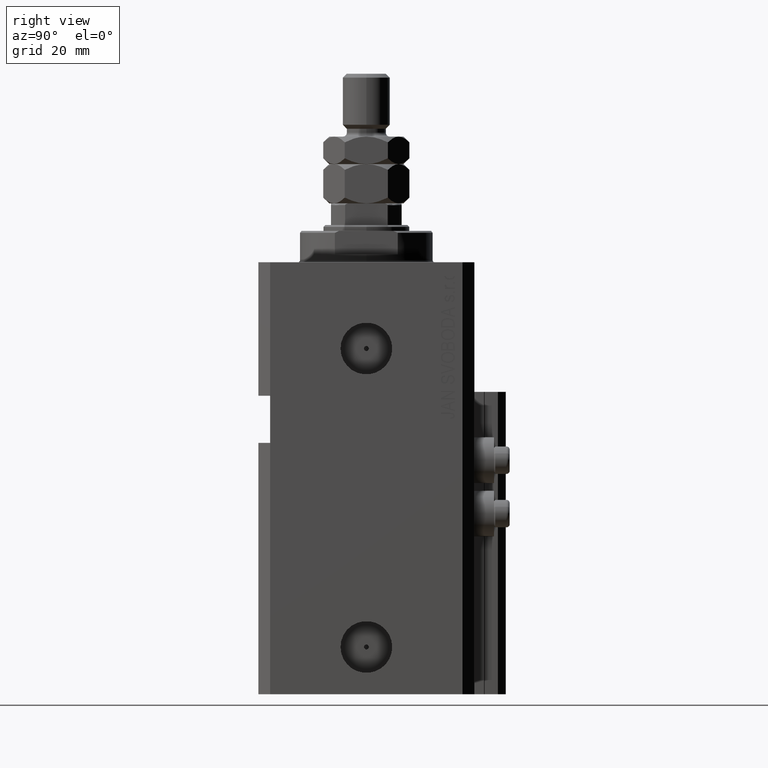
[diagram: clean part render]
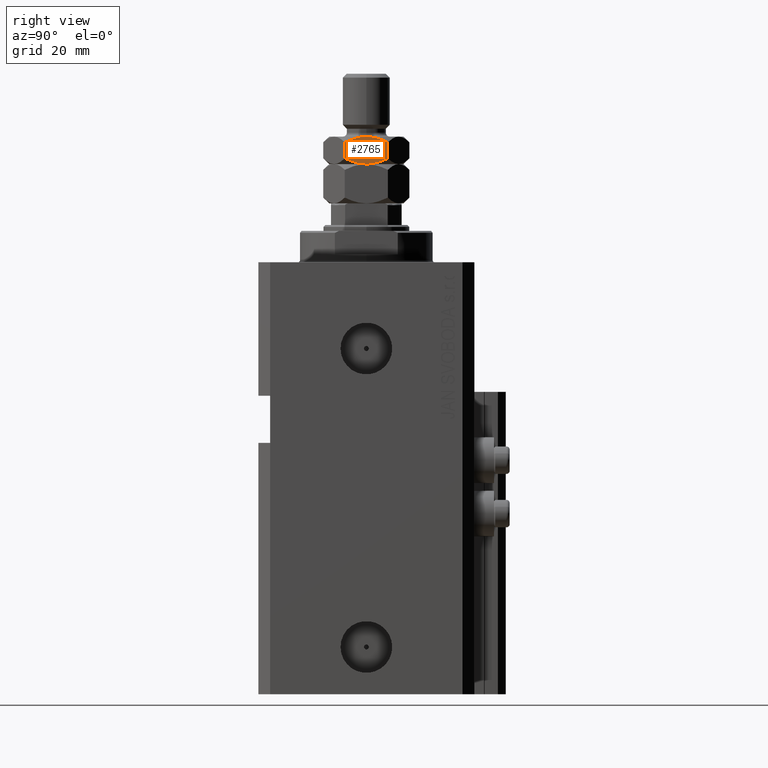
[diagram: same view with one face highlighted and labeled with its STEP entity id]
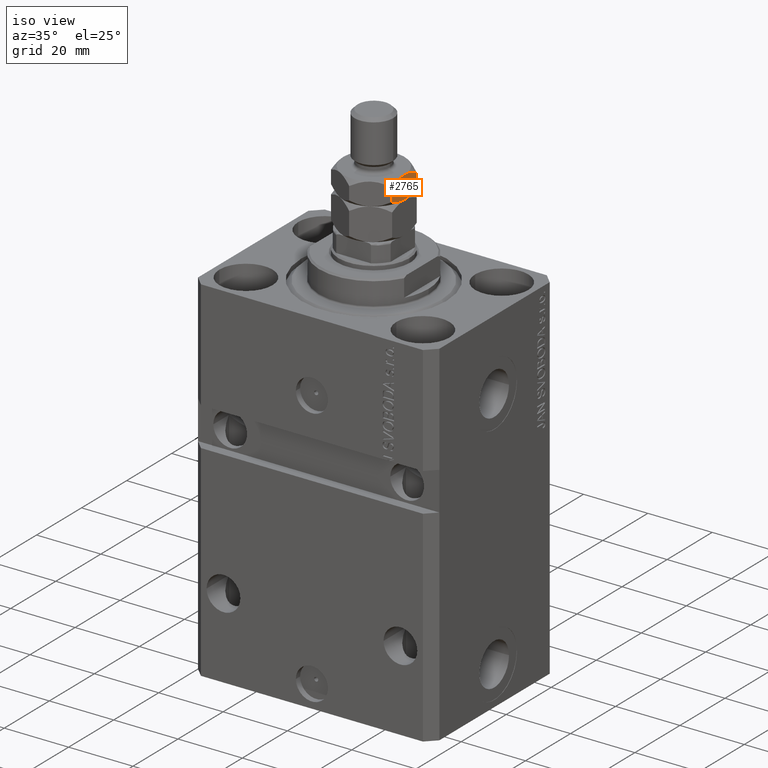
[diagram: same view with one face highlighted and labeled with its STEP entity id]
A machine part, right view. The second image highlights one B-rep face of the part: STEP entity #2765.
A second angle (iso view) of the same face is appended — the face is thin or edge-on in the first view.
In plain terms, the highlighted planar face has unit normal (-1, -0, 0).
Its self-contained STEP definition (entity closure, byte-faithful):
#197 = CARTESIAN_POINT ( 'NONE',  ( 9.499999999999992895, 1.905622789724485067, 10.17795958574150283 ) ) ;
#1487 = CARTESIAN_POINT ( 'NONE',  ( 9.499999999999991118, -3.733428111434933250, 16.30082488061093215 ) ) ;
#1722 = CARTESIAN_POINT ( 'NONE',  ( 9.499999999999994671, -5.484827557301442447, 15.53034488539711688 ) ) ;
#2223 = CARTESIAN_POINT ( 'NONE',  ( 9.499999999999996447, -2.369688663400942197, 16.71871151796999300 ) ) ;
#2765 = ADVANCED_FACE ( 'NONE', ( #17644 ), #32926, .F. ) ;
#3072 = CARTESIAN_POINT ( 'NONE',  ( 9.499999999999996447, 0.000000000000000000, 10.00000000000000000 ) ) ;
#3372 = DIRECTION ( 'NONE',  ( 1.581383788144378447E-16, -1.000000000000000000, 0.000000000000000000 ) ) ;
#3470 = CARTESIAN_POINT ( 'NONE',  ( 9.499999999999991118, 3.733428111434938135, 10.69917511938905896 ) ) ;
#3800 = CARTESIAN_POINT ( 'NONE',  ( 9.499999999999994671, -3.739300393387253951, 10.70136854772636070 ) ) ;
#4550 = DIRECTION ( 'NONE',  ( -0.000000000000000000, -0.000000000000000000, -1.000000000000000000 ) ) ;
#4651 = CARTESIAN_POINT ( 'NONE',  ( 9.499999999999994671, 1.502314598737158637E-15, 17.00000000000000000 ) ) ;
#5641 = EDGE_CURVE ( 'NONE', #47740, #10463, #17098, .T. ) ;
#5703 = EDGE_CURVE ( 'NONE', #29970, #25646, #27418, .T. ) ;
#7223 = CARTESIAN_POINT ( 'NONE',  ( 9.499999999999994671, 3.283585621344905725, 10.54191787159927607 ) ) ;
#7953 = ORIENTED_EDGE ( 'NONE', *, *, #5703, .F. ) ;
#9487 = CARTESIAN_POINT ( 'NONE',  ( 9.499999999999994671, -5.484827557301442447, 15.53034488539711688 ) ) ;
#10319 = CARTESIAN_POINT ( 'NONE',  ( 9.499999999999994671, -5.484827557301443335, 11.46965511460288312 ) ) ;
#10463 = VERTEX_POINT ( 'NONE', #42614 ) ;
#11053 = CARTESIAN_POINT ( 'NONE',  ( 9.499999999999991118, -1.895392204582992068, 10.14648436506573681 ) ) ;
#11458 = CARTESIAN_POINT ( 'NONE',  ( 9.499999999999991118, 0.4761117316842319869, 9.999999999999992895 ) ) ;
#11785 = ORIENTED_EDGE ( 'NONE', *, *, #5641, .F. ) ;
#12085 = ORIENTED_EDGE ( 'NONE', *, *, #19823, .T. ) ;
#14961 = CARTESIAN_POINT ( 'NONE',  ( 9.499999999999994671, 0.9601762266066407037, 10.03695139510887380 ) ) ;
#15002 = AXIS2_PLACEMENT_3D ( 'NONE', #29169, #44405, #3372 ) ;
#15455 = CARTESIAN_POINT ( 'NONE',  ( 9.499999999999996447, 0.000000000000000000, 10.00000000000000000 ) ) ;
#15839 = ORIENTED_EDGE ( 'NONE', *, *, #26876, .F. ) ;
#16205 = B_SPLINE_CURVE_WITH_KNOTS ( 'NONE', 3,
 ( #9487, #24774, #36510, #1487, #16754, #2223, #47014, #17488, #48008, #31792 ),
 .UNSPECIFIED., .F., .F.,
 ( 4, 2, 2, 2, 4 ),
 ( 0.01567844649877152621, 0.01710651001824320394, 0.01853457353771487820, 0.01996263705718655593, 0.02139070057665823366 ),
 .UNSPECIFIED. ) ;
#16737 = B_SPLINE_CURVE_WITH_KNOTS ( 'NONE', 3,
 ( #47107, #36112, #39843, #21346, #39600, #36356, #16846, #32132 ),
 .UNSPECIFIED., .F., .F.,
 ( 4, 2, 2, 4 ),
 ( 0.02139070057665823366, 0.02425837263787777170, 0.02569220866848754420, 0.02712604469909731322 ),
 .UNSPECIFIED. ) ;
#16754 = CARTESIAN_POINT ( 'NONE',  ( 9.499999999999992895, -3.283585621344904393, 16.45808212840072215 ) ) ;
#16846 = CARTESIAN_POINT ( 'NONE',  ( 9.499999999999989342, 5.058804922144356730, 15.74335620297565441 ) ) ;
#17098 = LINE ( 'NONE', #47610, #23128 ) ;
#17170 = VERTEX_POINT ( 'NONE', #4651 ) ;
#17488 = CARTESIAN_POINT ( 'NONE',  ( 9.499999999999992895, -0.9601762266066392604, 16.96304860489112087 ) ) ;
#17644 = FACE_OUTER_BOUND ( 'NONE', #28992, .T. ) ;
#18325 = ORIENTED_EDGE ( 'NONE', *, *, #48884, .F. ) ;
#18814 = CARTESIAN_POINT ( 'NONE',  ( 9.499999999999996447, -4.625461644961930574, 11.05843019788303749 ) ) ;
#19823 = EDGE_CURVE ( 'NONE', #32125, #25646, #45587, .T. ) ;
#21346 = CARTESIAN_POINT ( 'NONE',  ( 9.499999999999992895, 3.284280073076856876, 16.45811109165832065 ) ) ;
#22337 = CARTESIAN_POINT ( 'NONE',  ( 9.499999999999994671, -5.058804922144361171, 11.25664379702434204 ) ) ;
#22828 = CARTESIAN_POINT ( 'NONE',  ( 9.499999999999998224, -3.284280073076859985, 10.54188890834167758 ) ) ;
#22978 = CARTESIAN_POINT ( 'NONE',  ( 9.499999999999992895, 4.621752210278245343, 11.05676471017157958 ) ) ;
#23128 = VECTOR ( 'NONE', #35872, 1000.000000000000000 ) ;
#24774 = CARTESIAN_POINT ( 'NONE',  ( 9.499999999999996447, -5.058637179188067101, 15.74344007445382232 ) ) ;
#25492 = VECTOR ( 'NONE', #4550, 1000.000000000000000 ) ;
#25646 = VERTEX_POINT ( 'NONE', #31542 ) ;
#26106 = B_SPLINE_CURVE_WITH_KNOTS ( 'NONE', 3,
 ( #34244, #45727, #22978, #3470, #7223, #26243, #197, #14961, #11458, #15455 ),
 .UNSPECIFIED., .F., .F.,
 ( 4, 2, 2, 2, 4 ),
 ( 0.01567844649877152968, 0.01710651001824320741, 0.01853457353771488514, 0.01996263705718656287, 0.02139070057665824059 ),
 .UNSPECIFIED. ) ;
#26243 = CARTESIAN_POINT ( 'NONE',  ( 9.499999999999994671, 2.369688663400943085, 10.28128848203000878 ) ) ;
#26876 = EDGE_CURVE ( 'NONE', #10463, #29970, #26106, .T. ) ;
#27418 = B_SPLINE_CURVE_WITH_KNOTS ( 'NONE', 3,
 ( #38075, #45077, #11053, #22828, #3800, #18814, #22337, #10319 ),
 .UNSPECIFIED., .F., .F.,
 ( 4, 2, 2, 4 ),
 ( 0.02139070057665824059, 0.02425837263787778211, 0.02569220866848755114, 0.02712604469909732363 ),
 .UNSPECIFIED. ) ;
#28992 = EDGE_LOOP ( 'NONE', ( #15839, #11785, #18325, #34088, #12085, #7953 ) ) ;
#29169 = CARTESIAN_POINT ( 'NONE',  ( 9.499999999999994671, -5.484827557301443335, 17.00000000000000000 ) ) ;
#29970 = VERTEX_POINT ( 'NONE', #3072 ) ;
#31081 = CARTESIAN_POINT ( 'NONE',  ( 9.499999999999994671, -5.484827557301443335, 17.00000000000000000 ) ) ;
#31542 = CARTESIAN_POINT ( 'NONE',  ( 9.499999999999994671, -5.484827557301443335, 11.46965511460288312 ) ) ;
#31792 = CARTESIAN_POINT ( 'NONE',  ( 9.499999999999994671, 1.502314598737158637E-15, 17.00000000000000000 ) ) ;
#32028 = EDGE_CURVE ( 'NONE', #32125, #17170, #16205, .T. ) ;
#32125 = VERTEX_POINT ( 'NONE', #1722 ) ;
#32132 = CARTESIAN_POINT ( 'NONE',  ( 9.499999999999992895, 5.484827557301444223, 15.53034488539711866 ) ) ;
#32926 = PLANE ( 'NONE',  #15002 ) ;
#33153 = CARTESIAN_POINT ( 'NONE',  ( 9.499999999999992895, 5.484827557301444223, 15.53034488539711866 ) ) ;
#34088 = ORIENTED_EDGE ( 'NONE', *, *, #32028, .F. ) ;
#34244 = CARTESIAN_POINT ( 'NONE',  ( 9.499999999999992895, 5.484827557301444223, 11.46965511460288134 ) ) ;
#35872 = DIRECTION ( 'NONE',  ( -0.000000000000000000, -0.000000000000000000, -1.000000000000000000 ) ) ;
#36112 = CARTESIAN_POINT ( 'NONE',  ( 9.499999999999998224, 0.9560725362376377712, 17.00000000000000000 ) ) ;
#36356 = CARTESIAN_POINT ( 'NONE',  ( 9.499999999999994671, 4.625461644961926133, 15.94156980211696251 ) ) ;
#36510 = CARTESIAN_POINT ( 'NONE',  ( 9.499999999999992895, -4.621752210278242678, 15.94323528982841864 ) ) ;
#38075 = CARTESIAN_POINT ( 'NONE',  ( 9.499999999999996447, 0.000000000000000000, 10.00000000000000000 ) ) ;
#39600 = CARTESIAN_POINT ( 'NONE',  ( 9.499999999999992895, 3.739300393387251731, 16.29863145227364640 ) ) ;
#39843 = CARTESIAN_POINT ( 'NONE',  ( 9.499999999999994671, 1.895392204582990958, 16.85351563493426141 ) ) ;
#42614 = CARTESIAN_POINT ( 'NONE',  ( 9.499999999999992895, 5.484827557301444223, 11.46965511460288134 ) ) ;
#44405 = DIRECTION ( 'NONE',  ( -1.000000000000000000, -1.581383788144378447E-16, 0.000000000000000000 ) ) ;
#45077 = CARTESIAN_POINT ( 'NONE',  ( 9.499999999999996447, -0.9560725362376376602, 9.999999999999994671 ) ) ;
#45587 = LINE ( 'NONE', #31081, #25492 ) ;
#45727 = CARTESIAN_POINT ( 'NONE',  ( 9.499999999999992895, 5.058637179188067101, 11.25655992554617946 ) ) ;
#47014 = CARTESIAN_POINT ( 'NONE',  ( 9.499999999999994671, -1.905622789724483956, 16.82204041425849539 ) ) ;
#47107 = CARTESIAN_POINT ( 'NONE',  ( 9.499999999999994671, 1.502314598737158637E-15, 17.00000000000000000 ) ) ;
#47610 = CARTESIAN_POINT ( 'NONE',  ( 9.499999999999992895, 5.484827557301444223, 17.00000000000000000 ) ) ;
#47740 = VERTEX_POINT ( 'NONE', #33153 ) ;
#48008 = CARTESIAN_POINT ( 'NONE',  ( 9.499999999999996447, -0.4761117316842318758, 17.00000000000000355 ) ) ;
#48884 = EDGE_CURVE ( 'NONE', #17170, #47740, #16737, .T. ) ;